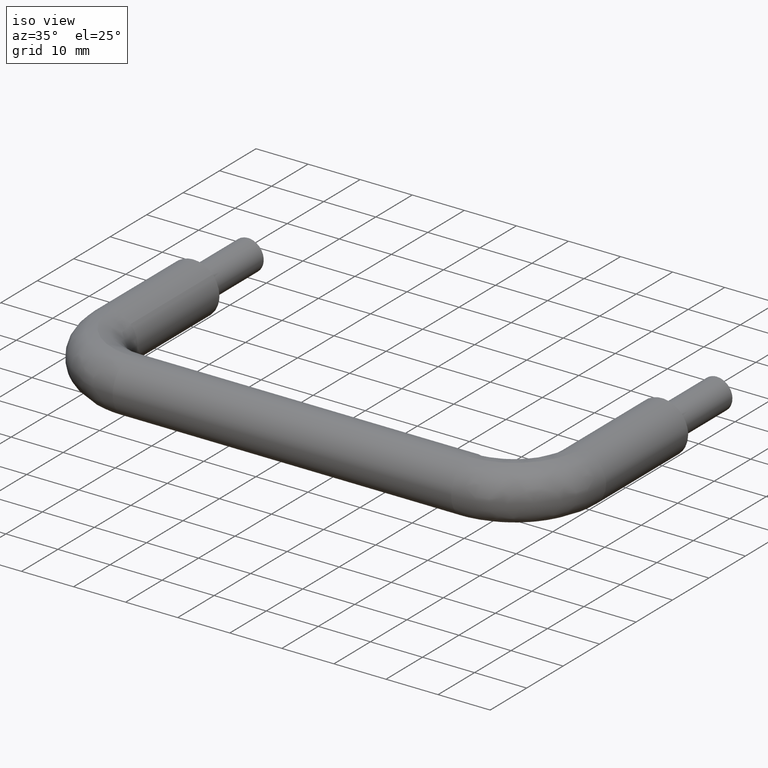
[diagram: clean part render]
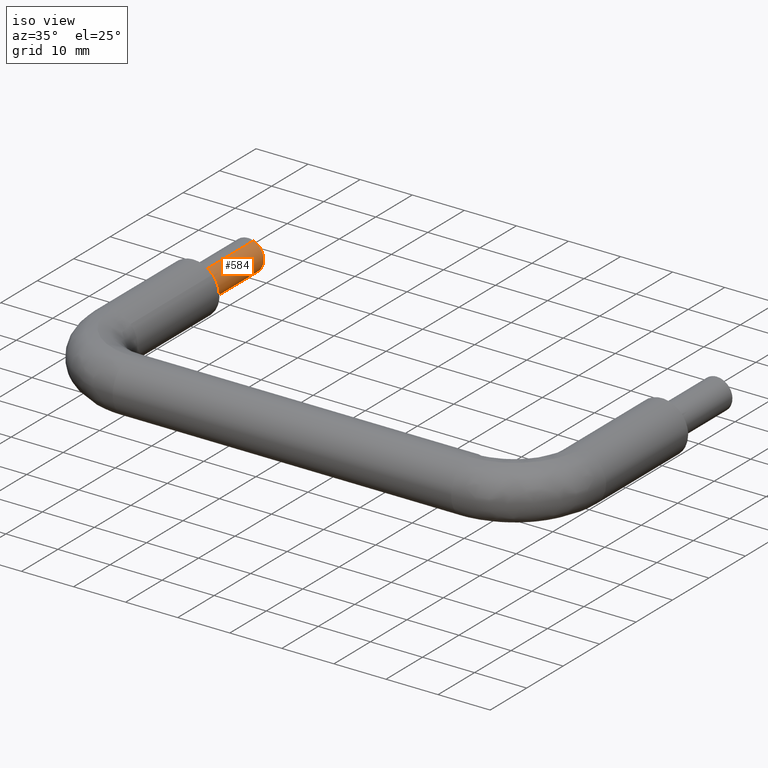
[diagram: same view with one face highlighted and labeled with its STEP entity id]
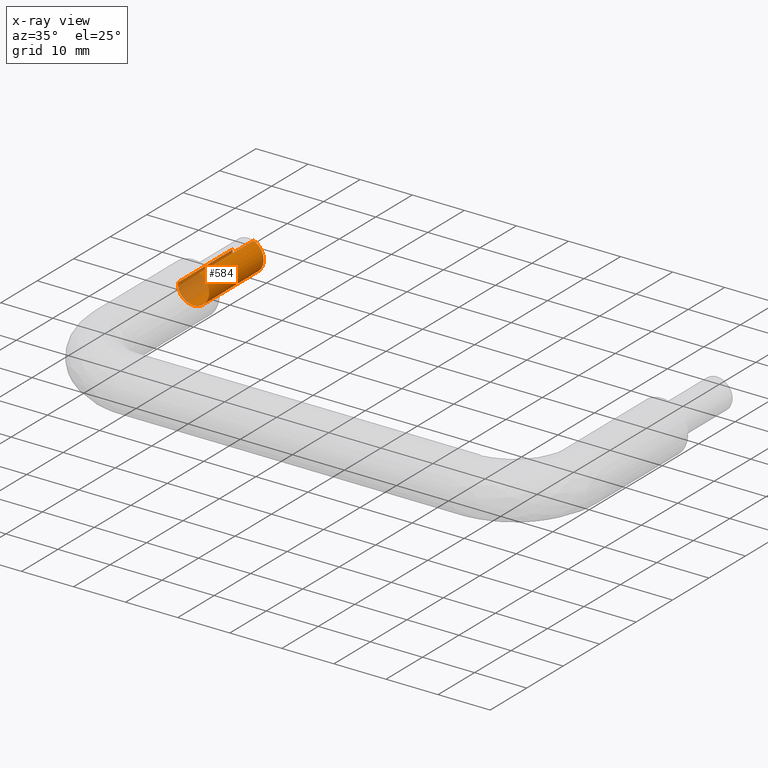
[diagram: x-ray of the same camera — body ghosted, the highlighted face saturated]
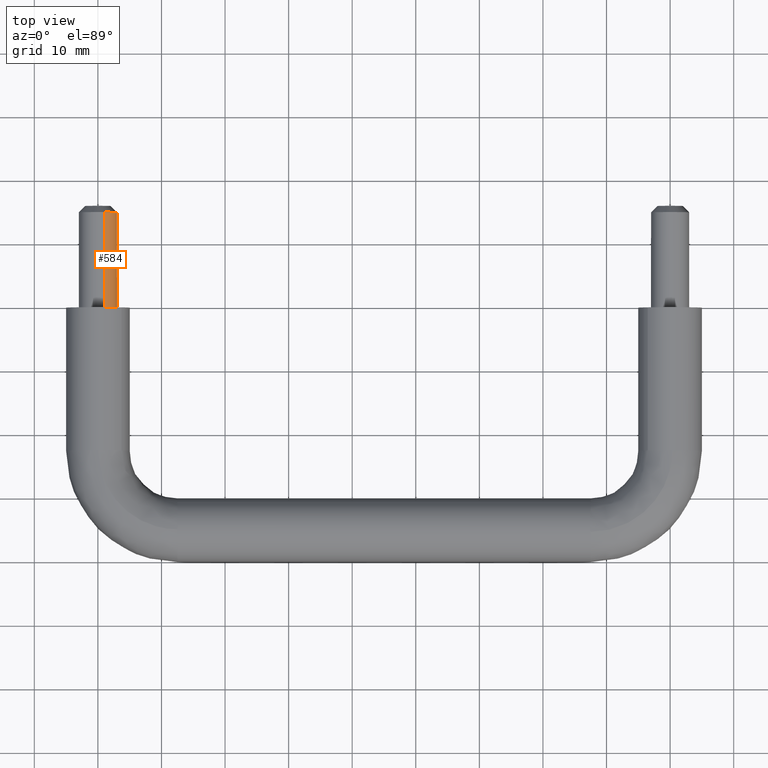
[diagram: same view with one face highlighted and labeled with its STEP entity id]
A machine part, iso view. The second image highlights one B-rep face of the part: STEP entity #584.
The next image is the same camera in x-ray: the body ghosted, the highlighted face saturated — about 20% of this face is hidden behind the body in this view.
A second angle (top view) of the same face is appended — the face is thin or edge-on in the first view.
In plain terms, the highlighted face is a freeform B-spline surface patch.
Its self-contained STEP definition (entity closure, byte-faithful):
#402=CARTESIAN_POINT('',(1.054853923258184,14.999999999999760,2.808430736298622));
#403=VERTEX_POINT('',#402);
#419=CARTESIAN_POINT('',(-2.994404395266439,14.999999999996680,0.183145618616204));
#420=VERTEX_POINT('',#419);
#434=CARTESIAN_POINT('',(-2.994404655094082,4.996004E-016,0.183141370347526));
#435=VERTEX_POINT('',#434);
#436=CARTESIAN_POINT('',(-2.994404395266439,14.999999999996680,0.183145618616204));
#437=CARTESIAN_POINT('',(-2.994404655094082,4.996004E-016,0.183141370347526));
#438=QUASI_UNIFORM_CURVE('',1,(#436,#437),.UNSPECIFIED.,.F.,.U.);
#439=EDGE_CURVE('',#420,#435,#438,.T.);
#456=CARTESIAN_POINT('',(1.054853923252208,-3.981383E-016,2.808430736300866));
#457=VERTEX_POINT('',#456);
#471=CARTESIAN_POINT('',(1.054853923258184,14.999999999999760,2.808430736298622));
#472=CARTESIAN_POINT('',(1.054853923252208,-3.981383E-016,2.808430736300866));
#473=QUASI_UNIFORM_CURVE('',1,(#471,#472),.UNSPECIFIED.,.F.,.U.);
#474=EDGE_CURVE('',#403,#457,#473,.T.);
#479=CARTESIAN_POINT('',(-2.994404395265600,15.374999999999760,0.183145618604571));
#480=CARTESIAN_POINT('',(-3.177550013870171,15.374999999999762,-2.811258776661029));
#481=CARTESIAN_POINT('',(-0.183145618604570,15.374999999999760,-2.994404395265600));
#482=CARTESIAN_POINT('',(2.811258776661029,15.374999999999762,-3.177550013870171));
#483=CARTESIAN_POINT('',(2.994404395265601,15.374999999999760,-0.183145618604571));
#484=CARTESIAN_POINT('',(3.129711668608025,15.374999999999757,2.029108745409197));
#485=CARTESIAN_POINT('',(1.054853923174717,15.374999999999753,2.808430736329971));
#486=CARTESIAN_POINT('',(-2.994404395265600,-0.384374999999995,0.183145618604571));
#487=CARTESIAN_POINT('',(-3.177550013870171,-0.384374999999995,-2.811258776661029));
#488=CARTESIAN_POINT('',(-0.183145618604570,-0.384374999999995,-2.994404395265600));
#489=CARTESIAN_POINT('',(2.811258776661029,-0.384374999999995,-3.177550013870171));
#490=CARTESIAN_POINT('',(2.994404395265601,-0.384374999999995,-0.183145618604571));
#491=CARTESIAN_POINT('',(3.129711668608025,-0.384374999999995,2.029108745409197));
#492=CARTESIAN_POINT('',(1.054853923174717,-0.384374999999995,2.808430736329971));
#500=(BOUNDED_SURFACE()B_SPLINE_SURFACE(2,1,((#479,#486),(#480,#487),(#481,#488),(#482,#489),(#483,#490),(#484,#491),(#485,#492)),.UNSPECIFIED.,.F.,.F.,.U.)B_SPLINE_SURFACE_WITH_KNOTS((3,2,2,3),(2,2),(0.0,4.970562748477140,9.941125496954280,13.917575695735991),(0.0,15.759374999999750),.UNSPECIFIED.)GEOMETRIC_REPRESENTATION_ITEM()RATIONAL_B_SPLINE_SURFACE(((1.0,1.0),(0.707106781186548,0.707106781186548),(1.0,1.0),(0.707106781186548,0.707106781186548),(1.0,1.0),(0.765685424949238,0.765685424949238),(0.906274169979695,0.906274169979695)))REPRESENTATION_ITEM('')SURFACE());
#501=CARTESIAN_POINT('',(2.979028579098871,14.999999999888800,-0.354102704844122));
#502=VERTEX_POINT('',#501);
#503=CARTESIAN_POINT('',(2.979028579098872,14.999999999888797,-0.354102704844122));
#504=CARTESIAN_POINT('',(3.000000000000001,14.999999999999762,-0.177672359825580));
#505=CARTESIAN_POINT('',(3.0,14.999999999999760,0.0));
#506=CARTESIAN_POINT('',(3.0,14.999999999999760,2.077828786951324));
#507=CARTESIAN_POINT('',(1.054853923258184,14.999999999999753,2.808430736298622));
#515=(BOUNDED_CURVE()B_SPLINE_CURVE(2,(#503,#504,#505,#506,#507),.UNSPECIFIED.,.F.,.U.)B_SPLINE_CURVE_WITH_KNOTS((3,2,3),(0.229562473417982,0.250000000000000,0.440284170889521),.UNSPECIFIED.)CURVE()GEOMETRIC_REPRESENTATION_ITEM()RATIONAL_B_SPLINE_CURVE((0.956026753996464,0.976055948219229,1.0,0.777068226795677,0.893499554624276))REPRESENTATION_ITEM(''));
#516=EDGE_CURVE('',#502,#403,#515,.T.);
#517=ORIENTED_EDGE('',*,*,#516,.T.);
#518=ORIENTED_EDGE('',*,*,#474,.T.);
#519=CARTESIAN_POINT('',(6.123032E-016,0.0,-3.0));
#520=VERTEX_POINT('',#519);
#521=CARTESIAN_POINT('',(6.123032E-016,0.0,-3.0));
#522=CARTESIAN_POINT('',(3.0,0.0,-3.0));
#523=CARTESIAN_POINT('',(3.0,0.0,0.0));
#524=CARTESIAN_POINT('',(3.000000000000001,0.0,2.077828786960771));
#525=CARTESIAN_POINT('',(1.054853923252208,-3.981383E-016,2.808430736300867));
#533=(BOUNDED_CURVE()B_SPLINE_CURVE(2,(#521,#522,#523,#524,#525),.UNSPECIFIED.,.F.,.U.)B_SPLINE_CURVE_WITH_KNOTS((3,2,3),(0.0,0.250000000000000,0.440284170890193),.UNSPECIFIED.)CURVE()GEOMETRIC_REPRESENTATION_ITEM()RATIONAL_B_SPLINE_CURVE((1.0,0.707106781186548,1.0,0.777068226794890,0.893499554625099))REPRESENTATION_ITEM(''));
#534=EDGE_CURVE('',#520,#457,#533,.T.);
#535=ORIENTED_EDGE('',*,*,#534,.F.);
#536=CARTESIAN_POINT('',(-2.994404655094082,4.996004E-016,0.183141370347526));
#537=CARTESIAN_POINT('',(-3.0,0.0,0.091656159811626));
#538=CARTESIAN_POINT('',(-3.0,0.0,0.0));
#539=CARTESIAN_POINT('',(-2.999999999999999,0.0,-3.0));
#540=CARTESIAN_POINT('',(6.123032E-016,0.0,-3.0));
#548=(BOUNDED_CURVE()B_SPLINE_CURVE(2,(#536,#537,#538,#539,#540),.UNSPECIFIED.,.F.,.U.)B_SPLINE_CURVE_WITH_KNOTS((3,2,3),(0.739333207039648,0.750000000000000,1.0),.UNSPECIFIED.)CURVE()GEOMETRIC_REPRESENTATION_ITEM()RATIONAL_B_SPLINE_CURVE((0.976072566321791,0.987503074701704,1.0,0.707106781186548,1.0))REPRESENTATION_ITEM(''));
#549=EDGE_CURVE('',#435,#520,#548,.T.);
#550=ORIENTED_EDGE('',*,*,#549,.F.);
#551=ORIENTED_EDGE('',*,*,#439,.F.);
#552=CARTESIAN_POINT('',(6.123032E-016,14.999999999999760,-3.0));
#553=VERTEX_POINT('',#552);
#554=CARTESIAN_POINT('',(-2.994404395266439,14.999999999996675,0.183145618616204));
#555=CARTESIAN_POINT('',(-3.000000000000000,14.999999999999758,0.091658289918909));
#556=CARTESIAN_POINT('',(-3.0,14.999999999999760,0.0));
#557=CARTESIAN_POINT('',(-2.999999999999999,14.999999999999769,-3.0));
#558=CARTESIAN_POINT('',(6.123032E-016,14.999999999999760,-3.0));
#566=(BOUNDED_CURVE()B_SPLINE_CURVE(2,(#554,#555,#556,#557,#558),.UNSPECIFIED.,.F.,.U.)B_SPLINE_CURVE_WITH_KNOTS((3,2,3),(0.739332962239309,0.750000000000000,1.0),.UNSPECIFIED.)CURVE()GEOMETRIC_REPRESENTATION_ITEM()RATIONAL_B_SPLINE_CURVE((0.976072041667502,0.987502787900266,1.0,0.707106781186548,1.0))REPRESENTATION_ITEM(''));
#567=EDGE_CURVE('',#420,#553,#566,.T.);
#568=ORIENTED_EDGE('',*,*,#567,.T.);
#569=CARTESIAN_POINT('',(6.123032E-016,14.999999999999760,-3.0));
#570=CARTESIAN_POINT('',(2.664523576303508,14.999999999999766,-3.000000000000001));
#571=CARTESIAN_POINT('',(2.979028579098872,14.999999999888797,-0.354102704844122));
#579=(BOUNDED_CURVE()B_SPLINE_CURVE(2,(#569,#570,#571),.UNSPECIFIED.,.F.,.U.)B_SPLINE_CURVE_WITH_KNOTS((3,3),(0.0,0.229562473417982),.UNSPECIFIED.)CURVE()GEOMETRIC_REPRESENTATION_ITEM()RATIONAL_B_SPLINE_CURVE((1.0,0.731050832967319,0.956026753996464))REPRESENTATION_ITEM(''));
#580=EDGE_CURVE('',#553,#502,#579,.T.);
#581=ORIENTED_EDGE('',*,*,#580,.T.);
#582=EDGE_LOOP('',(#517,#518,#535,#550,#551,#568,#581));
#583=FACE_OUTER_BOUND('',#582,.T.);
#584=ADVANCED_FACE('',(#583),#500,.T.);